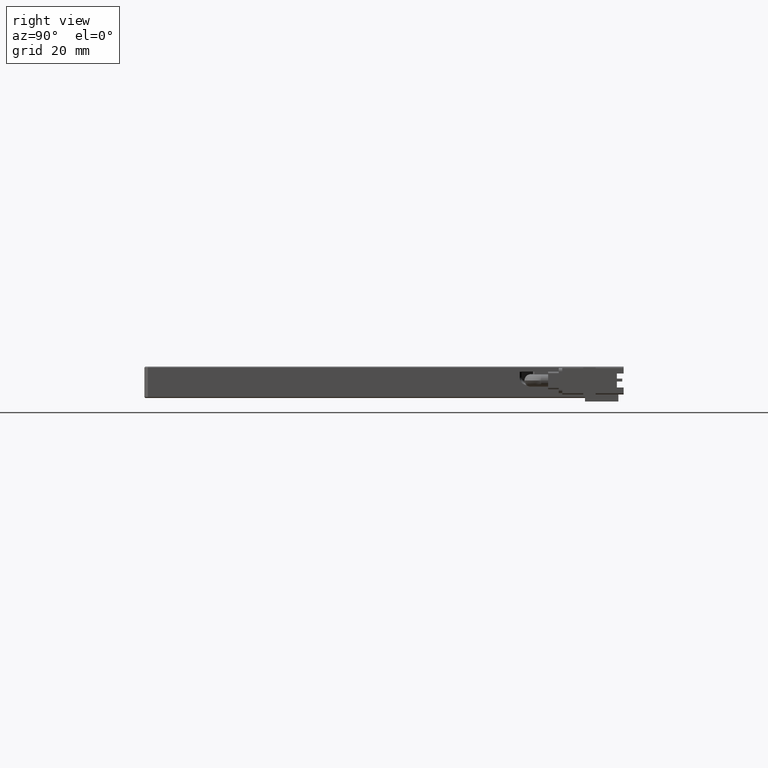
[diagram: clean part render]
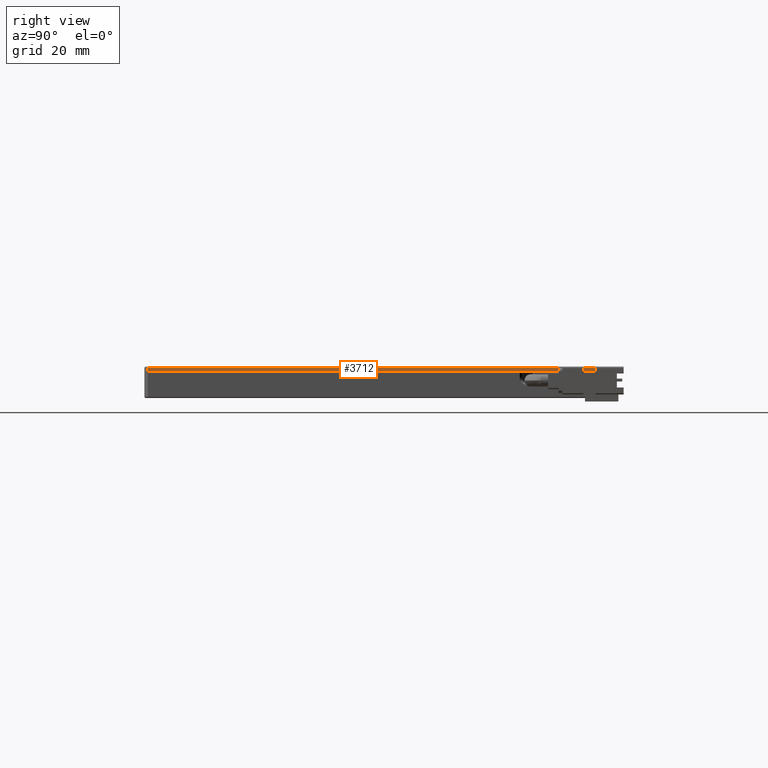
[diagram: same view with one face highlighted and labeled with its STEP entity id]
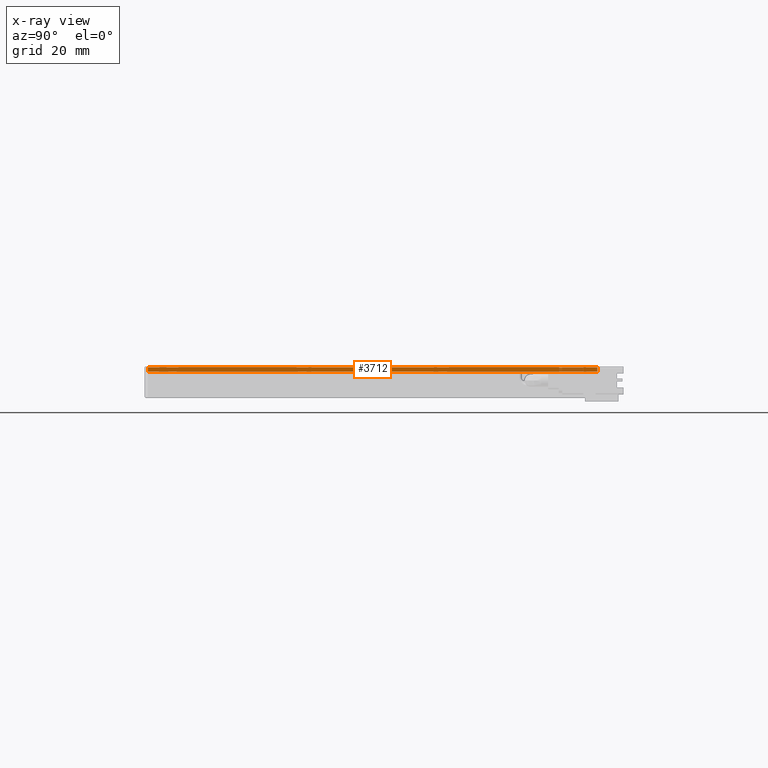
[diagram: x-ray of the same camera — body ghosted, the highlighted face saturated]
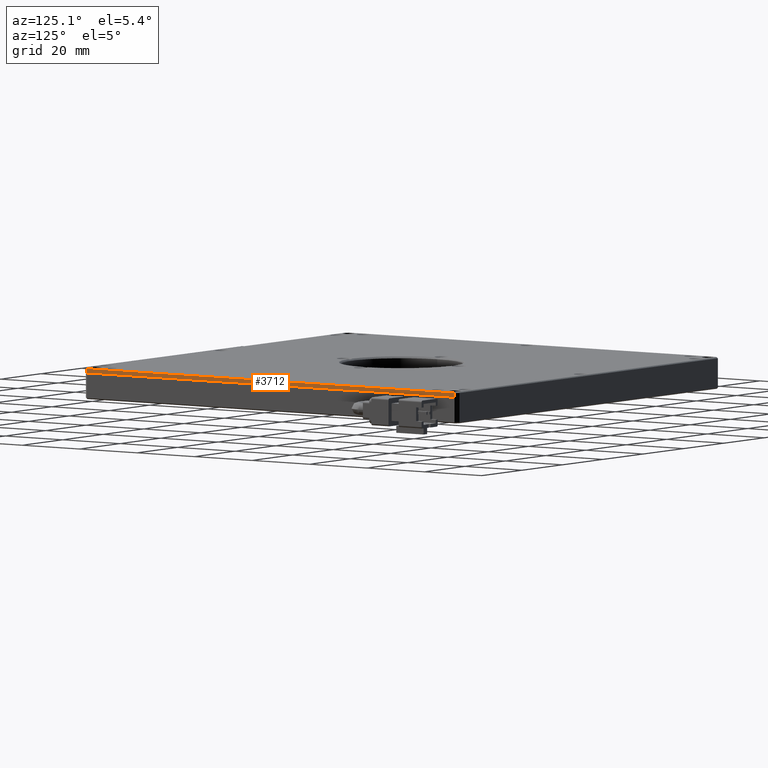
[diagram: same view with one face highlighted and labeled with its STEP entity id]
A machine part, right view. The second image highlights one B-rep face of the part: STEP entity #3712.
The next image is the same camera in x-ray: the body ghosted, the highlighted face saturated — about 6% of this face is hidden behind the body in this view.
A second angle (auxiliary view) of the same face is appended — the face is thin or edge-on in the first view.
In plain terms, the highlighted planar face has unit normal (-1, 0, 0).
Its self-contained STEP definition (entity closure, byte-faithful):
#464 = LINE ( 'NONE', #18962, #18096 ) ;
#866 = DIRECTION ( 'NONE',  ( -1.000000000000000000, 0.0000000000000000000, 0.0000000000000000000 ) ) ;
#2896 = VECTOR ( 'NONE', #7558, 1000.000000000000000 ) ;
#3160 = EDGE_CURVE ( 'NONE', #4108, #19656, #10554, .T. ) ;
#3330 = VECTOR ( 'NONE', #19230, 1000.000000000000000 ) ;
#3712 = ADVANCED_FACE ( 'NONE', ( #8342 ), #3826, .F. ) ;
#3729 = CARTESIAN_POINT ( 'NONE',  ( 91.12907407407409700, 88.05944444444449500, 6.000000000000000000 ) ) ;
#3826 = PLANE ( 'NONE',  #7376 ) ;
#4025 = EDGE_CURVE ( 'NONE', #12043, #4108, #464, .T. ) ;
#4108 = VERTEX_POINT ( 'NONE', #14514 ) ;
#4900 = DIRECTION ( 'NONE',  ( 0.0000000000000000000, 1.000000000000000000, -0.0000000000000000000 ) ) ;
#4972 = VERTEX_POINT ( 'NONE', #19063 ) ;
#5258 = CARTESIAN_POINT ( 'NONE',  ( 91.12907407407409700, 88.05944444444449500, 4.500000000000000000 ) ) ;
#6973 = CARTESIAN_POINT ( 'NONE',  ( 91.12907407407409700, -40.94055555555552700, 6.000000000000000000 ) ) ;
#7083 = DIRECTION ( 'NONE',  ( -0.0000000000000000000, -0.0000000000000000000, -1.000000000000000000 ) ) ;
#7376 = AXIS2_PLACEMENT_3D ( 'NONE', #6973, #866, #14754 ) ;
#7558 = DIRECTION ( 'NONE',  ( -0.0000000000000000000, -0.0000000000000000000, -1.000000000000000000 ) ) ;
#7619 = CARTESIAN_POINT ( 'NONE',  ( 91.12907407407409700, -39.94055555555552700, 6.000000000000000000 ) ) ;
#8342 = FACE_OUTER_BOUND ( 'NONE', #19052, .T. ) ;
#9855 = CARTESIAN_POINT ( 'NONE',  ( 91.12907407407409700, 89.05944444444446600, 4.500000000000000900 ) ) ;
#10554 = LINE ( 'NONE', #3729, #15472 ) ;
#12043 = VERTEX_POINT ( 'NONE', #12731 ) ;
#12314 = ORIENTED_EDGE ( 'NONE', *, *, #12438, .T. ) ;
#12438 = EDGE_CURVE ( 'NONE', #12043, #4972, #18272, .T. ) ;
#12731 = CARTESIAN_POINT ( 'NONE',  ( 91.12907407407409700, -39.94055555555552000, 5.699999999999980600 ) ) ;
#14514 = CARTESIAN_POINT ( 'NONE',  ( 91.12907407407409700, 88.05944444444446600, 5.699999999999989500 ) ) ;
#14668 = ORIENTED_EDGE ( 'NONE', *, *, #4025, .F. ) ;
#14754 = DIRECTION ( 'NONE',  ( 0.0000000000000000000, 0.0000000000000000000, 1.000000000000000000 ) ) ;
#15472 = VECTOR ( 'NONE', #7083, 1000.000000000000000 ) ;
#16785 = LINE ( 'NONE', #9855, #3330 ) ;
#17477 = EDGE_CURVE ( 'NONE', #19656, #4972, #16785, .T. ) ;
#18096 = VECTOR ( 'NONE', #4900, 1000.000000000000000 ) ;
#18272 = LINE ( 'NONE', #7619, #2896 ) ;
#18681 = ORIENTED_EDGE ( 'NONE', *, *, #3160, .F. ) ;
#18962 = CARTESIAN_POINT ( 'NONE',  ( 91.12907407407409700, -40.94055555555552700, 5.699999999999978000 ) ) ;
#19052 = EDGE_LOOP ( 'NONE', ( #14668, #12314, #20051, #18681 ) ) ;
#19063 = CARTESIAN_POINT ( 'NONE',  ( 91.12907407407409700, -39.94055555555553400, 4.500000000000000900 ) ) ;
#19230 = DIRECTION ( 'NONE',  ( -0.0000000000000000000, -1.000000000000000000, -0.0000000000000000000 ) ) ;
#19656 = VERTEX_POINT ( 'NONE', #5258 ) ;
#20051 = ORIENTED_EDGE ( 'NONE', *, *, #17477, .F. ) ;